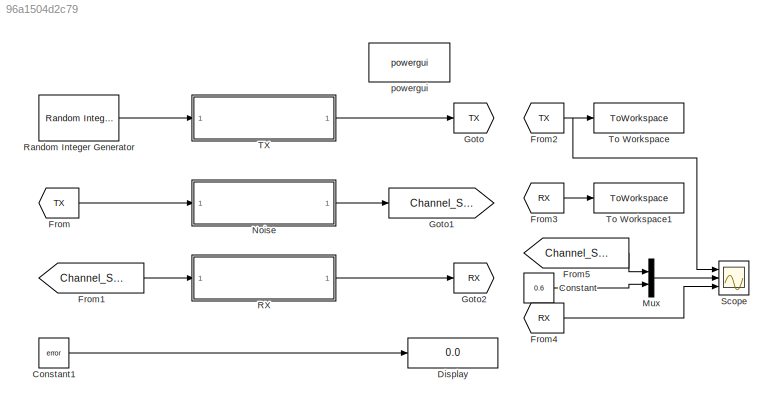
MODEL slx_96a1504d2c79
KIND model
CONFIG AbsTol = auto
CONFIG EnableMultiTasking = off
CONFIG FixedStep = auto
CONFIG MaxStep = auto
CONFIG MinStep = auto
CONFIG RelTol = 1e-3
CONFIG SampleTimeConstraint = Unconstrained
CONFIG SolverName = VariableStepAuto
CONFIG StartTime = 0.0
CONFIG StopTime = 10000
BLOCK [Constant] Constant
  Value = 0.6
BLOCK [Constant] Constant1
  Value = error
BLOCK [Display] Display
  Decimation = 1
  Ports = [1]
BLOCK [From] From
  GotoTag = TX
BLOCK [From] From1
  GotoTag = Channel_Signal
BLOCK [From] From2
  GotoTag = TX
BLOCK [From] From3
  GotoTag = RX
BLOCK [From] From4
  GotoTag = RX
BLOCK [From] From5
  GotoTag = Channel_Signal
BLOCK [Goto] Goto
  GotoTag = TX
BLOCK [Goto] Goto1
  GotoTag = Channel_Signal
BLOCK [Goto] Goto2
  GotoTag = RX
BLOCK [Mux] Mux
  DisplayOption = bar
  Inputs = 2
  Ports = [2, 1]
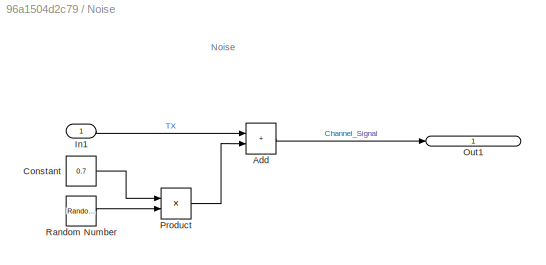
BLOCK [SubSystem] Noise
  Ports = [1, 1]
  RequestExecContextInheritance = off
BLOCK [Sum] Noise/Add
  IconShape = rectangular
  Ports = [2, 1]
BLOCK [Constant] Noise/Constant
  Value = 0.7
BLOCK [Inport] Noise/In1
  IconDisplay = Signal name
BLOCK [Outport] Noise/Out1
  IconDisplay = Signal name
BLOCK [Product] Noise/Product
  Ports = [2, 1]
BLOCK [RandomNumber] Noise/Random Number
  SampleTime = 1
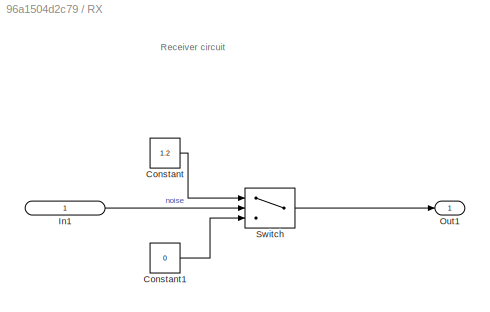
BLOCK [SubSystem] RX
  Ports = [1, 1]
  RequestExecContextInheritance = off
BLOCK [Constant] RX/Constant
  Value = 1.2
BLOCK [Constant] RX/Constant1
  Value = 0
BLOCK [Inport] RX/In1
  IconDisplay = Signal name
BLOCK [Outport] RX/Out1
BLOCK [Switch] RX/Switch
  Criteria = u2 > Threshold
  InputSameDT = off
  SaturateOnIntegerOverflow = off
  Threshold = 0.6
BLOCK [Reference] Random Integer Generator  REF=commrandsrc3/Random Integer
Generator
  Ports = [0, 1]
  SourceBlock = commrandsrc3/Random Integer\nGenerator
  SourceProductBaseCode = CM
  SourceType = Random Integer Generator
BLOCK [Scope] Scope
  Floating = off
  NumInputPorts = 3
  Ports = [3]
  ScopeSpecificationString = Simulink.scopes.TimeScopeBlockCfg('CurrentConfiguration', extmgr.ConfigurationSet(extmgr.Configuration('Core','General UI',true,'FigureColor',[0 0 0]),extmgr.Configuration('Core','Source UI',true),extmgr.Configuration('Sources','WiredSimulink',true),extmgr.Configuration('Visuals','Time Domain',true,'SerializedDisplays',{struct('MinYLimReal','-3.5187','MaxYLimReal','4.47814','YLabelReal','','MinYLi...<+3678ch>
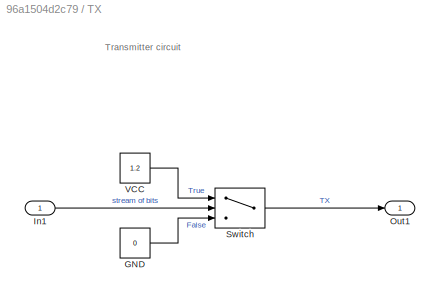
BLOCK [SubSystem] TX
  Ports = [1, 1]
  RequestExecContextInheritance = off
BLOCK [Constant] TX/GND
  Value = 0
BLOCK [Inport] TX/In1
BLOCK [Outport] TX/Out1
  IconDisplay = Signal name
BLOCK [Switch] TX/Switch
  Criteria = u2 > Threshold
  InputSameDT = off
  SaturateOnIntegerOverflow = off
BLOCK [Constant] TX/VCC
  Value = 1.2
BLOCK [ToWorkspace] To Workspace
  FixptAsFi = on
  MaxDataPoints = inf
  Ports = [1]
  SampleTime = -1
  Save2DSignal = 2-D array (concatenate along first dimension)
  VariableName = TX
BLOCK [ToWorkspace] To Workspace1
  FixptAsFi = on
  MaxDataPoints = inf
  Ports = [1]
  SampleTime = -1
  Save2DSignal = 2-D array (concatenate along first dimension)
  VariableName = RX
BLOCK [Reference] powergui  REF=spspowerguiLib/powergui
  Ports = []
  Priority = 1
  SourceBlock = spspowerguiLib/powergui
  SourceProductBaseCode = PS
  SourceType = PSB option menu block
ANNOTATION Noise: Noise
ANNOTATION RX: Receiver circuit
ANNOTATION TX: Transmitter circuit
LINE Constant1:1 -> Display:1
LINE Constant:1 -> Mux:2
LINE From1:1 -> RX:1
NET From2:1 -> Scope:1, To Workspace:1
LINE From3:1 -> To Workspace1:1
LINE From4:1 -> Scope:3
LINE From5:1 -> Mux:1
LINE From:1 -> Noise:1
LINE Mux:1 -> Scope:2
LINE Noise/Add:1 -> Noise/Out1:1
LINE Noise/Constant:1 -> Noise/Product:1
LINE Noise/In1:1 -> Noise/Add:1
LINE Noise/Product:1 -> Noise/Add:2
LINE Noise/Random Number:1 -> Noise/Product:2
LINE Noise:1 -> Goto1:1
LINE RX/Constant1:1 -> RX/Switch:3
LINE RX/Constant:1 -> RX/Switch:1
LINE RX/In1:1 -> RX/Switch:2
LINE RX/Switch:1 -> RX/Out1:1
LINE RX:1 -> Goto2:1
LINE Random Integer Generator:1 -> TX:1
LINE TX/GND:1 -> TX/Switch:3
LINE TX/In1:1 -> TX/Switch:2
LINE TX/Switch:1 -> TX/Out1:1
LINE TX/VCC:1 -> TX/Switch:1
LINE TX:1 -> Goto:1
note: NET lines group one-source signal fan-out (src -> all destinations, sorted); 1:1 wires keep LINE
